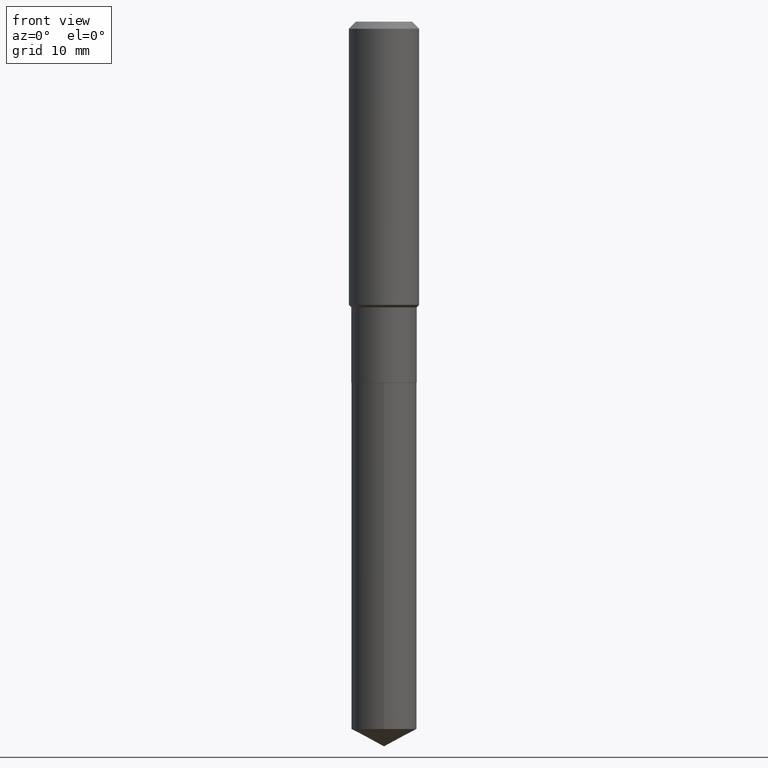
[diagram: clean part render]
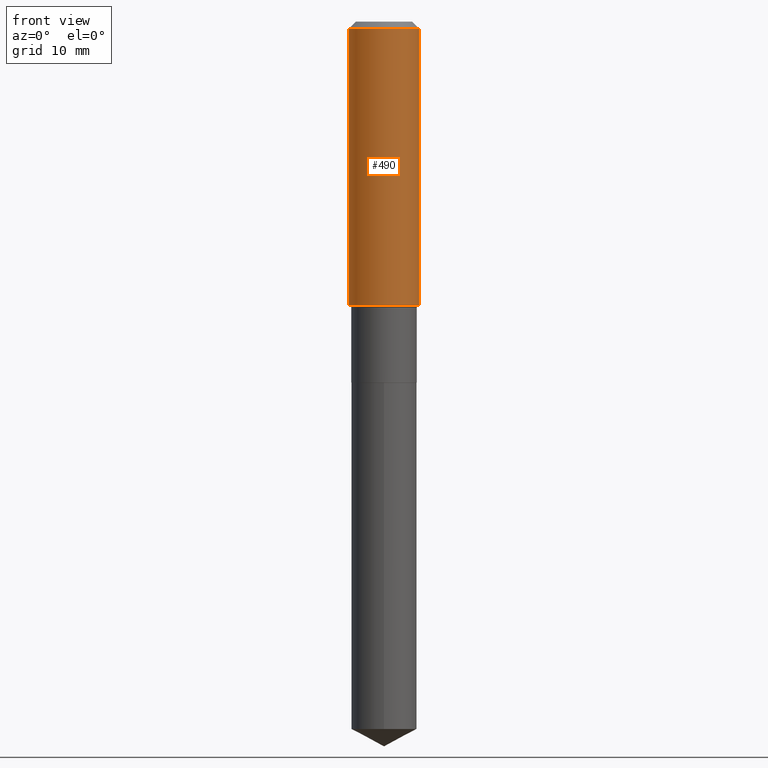
[diagram: same view with one face highlighted and labeled with its STEP entity id]
A machine part, front view. The second image highlights one B-rep face of the part: STEP entity #490.
In plain terms, the highlighted cylindrical surface (edge-blend (fillet) strip) has radius 5 mm, axis along (-0, 0, 1).
Its self-contained STEP definition (entity closure, byte-faithful):
#6 = LINE ( 'NONE', #233, #108 ) ;
#12 = VERTEX_POINT ( 'NONE', #247 ) ;
#13 = CARTESIAN_POINT ( 'NONE',  ( -0.1968500000000002192, -4.134596250454857650E-15, -1.584799999999999764 ) ) ;
#19 = ORIENTED_EDGE ( 'NONE', *, *, #214, .T. ) ;
#36 = DIRECTION ( 'NONE',  ( -2.445468806185136597E-29, 3.491481338843145583E-15, 1.000000000000000000 ) ) ;
#70 = AXIS2_PLACEMENT_3D ( 'NONE', #360, #287, #243 ) ;
#72 = CARTESIAN_POINT ( 'NONE',  ( 9.627810689950954155E-31, -1.374596203102556547E-16, -0.03937000000000029365 ) ) ;
#86 = VERTEX_POINT ( 'NONE', #439 ) ;
#89 = ORIENTED_EDGE ( 'NONE', *, *, #157, .F. ) ;
#94 = CARTESIAN_POINT ( 'NONE',  ( 0.1968500000000001082, -1.374596203102542397E-15, 9.598753983154305062E-30 ) ) ;
#108 = VECTOR ( 'NONE', #150, 39.37007874015748143 ) ;
#127 = EDGE_CURVE ( 'NONE', #86, #282, #285, .T. ) ;
#136 = EDGE_LOOP ( 'NONE', ( #89, #19, #306, #458 ) ) ;
#150 = DIRECTION ( 'NONE',  ( -2.445468806185136877E-29, 3.491481338843145188E-15, 1.000000000000000000 ) ) ;
#157 = EDGE_CURVE ( 'NONE', #352, #12, #6, .T. ) ;
#170 = AXIS2_PLACEMENT_3D ( 'NONE', #72, #224, #373 ) ;
#214 = EDGE_CURVE ( 'NONE', #352, #86, #372, .T. ) ;
#216 = AXIS2_PLACEMENT_3D ( 'NONE', #416, #36, #257 ) ;
#223 = CYLINDRICAL_SURFACE ( 'NONE', #216, 0.1968500000000001082 ) ;
#224 = DIRECTION ( 'NONE',  ( -2.445468806185136597E-29, 3.491481338843145583E-15, 1.000000000000000000 ) ) ;
#233 = CARTESIAN_POINT ( 'NONE',  ( -0.1968500000000001082, 1.398703375343757985E-15, -9.682923725166787881E-30 ) ) ;
#243 = DIRECTION ( 'NONE',  ( 1.000000000000000000, -6.982962677686265922E-15, 0.000000000000000000 ) ) ;
#247 = CARTESIAN_POINT ( 'NONE',  ( -0.1968500000000000250, -1.436676247710677524E-15, -0.03937000000000029365 ) ) ;
#257 = DIRECTION ( 'NONE',  ( 1.000000000000000000, -6.982962677686266711E-15, 4.876176775795935793E-29 ) ) ;
#263 = FACE_OUTER_BOUND ( 'NONE', #136, .T. ) ;
#282 = VERTEX_POINT ( 'NONE', #378 ) ;
#285 = LINE ( 'NONE', #94, #328 ) ;
#287 = DIRECTION ( 'NONE',  ( -2.445468806185136597E-29, 3.491481338843145583E-15, 1.000000000000000000 ) ) ;
#295 = DIRECTION ( 'NONE',  ( -2.445468806185136877E-29, 3.491481338843145188E-15, 1.000000000000000000 ) ) ;
#300 = EDGE_CURVE ( 'NONE', #12, #282, #488, .T. ) ;
#306 = ORIENTED_EDGE ( 'NONE', *, *, #127, .T. ) ;
#328 = VECTOR ( 'NONE', #295, 39.37007874015748143 ) ;
#352 = VERTEX_POINT ( 'NONE', #13 ) ;
#360 = CARTESIAN_POINT ( 'NONE',  ( 3.875578964042203780E-29, -5.533299625798616226E-15, -1.584799999999999764 ) ) ;
#372 = CIRCLE ( 'NONE', #70, 0.1968500000000002192 ) ;
#373 = DIRECTION ( 'NONE',  ( 1.000000000000000000, -6.982962677686265922E-15, 0.000000000000000000 ) ) ;
#378 = CARTESIAN_POINT ( 'NONE',  ( 0.1968500000000000250, -1.512055823412797189E-15, -0.03937000000000029365 ) ) ;
#416 = CARTESIAN_POINT ( 'NONE',  ( 0.000000000000000000, 0.000000000000000000, 0.000000000000000000 ) ) ;
#439 = CARTESIAN_POINT ( 'NONE',  ( 0.1968500000000002192, -6.907895828901160201E-15, -1.584799999999999764 ) ) ;
#458 = ORIENTED_EDGE ( 'NONE', *, *, #300, .F. ) ;
#488 = CIRCLE ( 'NONE', #170, 0.1968500000000000250 ) ;
#490 = ADVANCED_FACE ( 'NONE', ( #263 ), #223, .T. ) ;